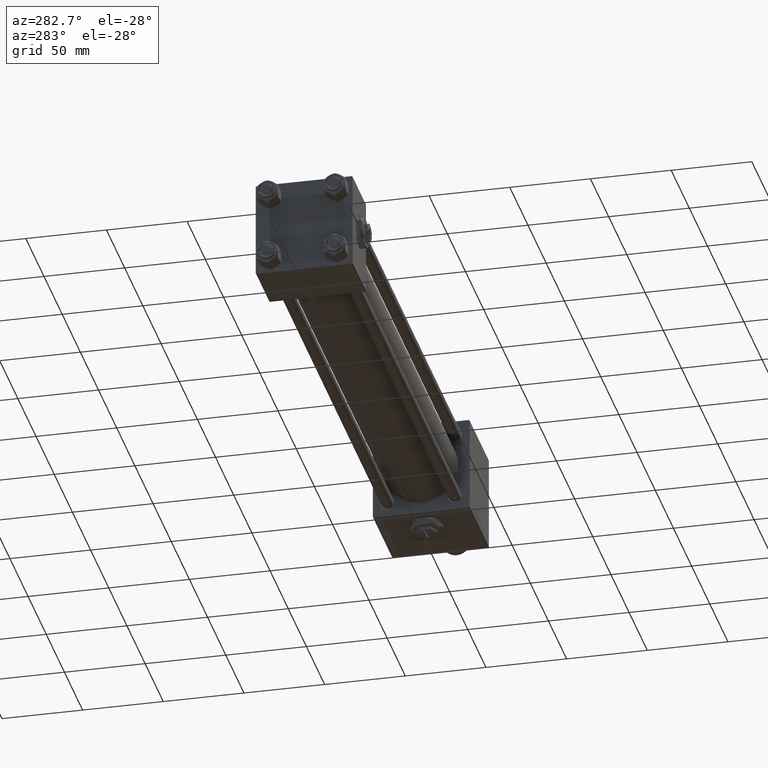
[diagram: clean part render]
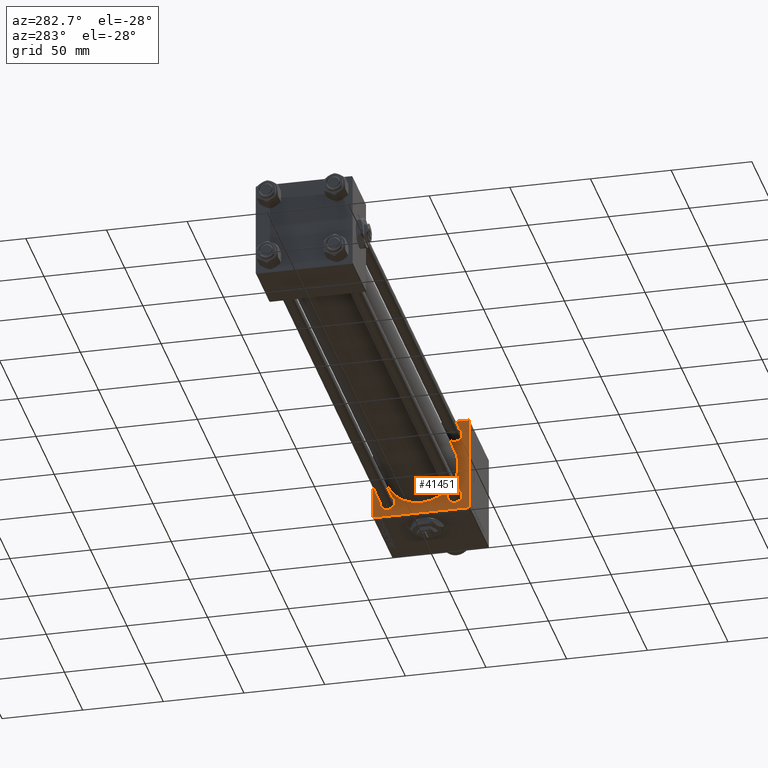
[diagram: same view with one face highlighted and labeled with its STEP entity id]
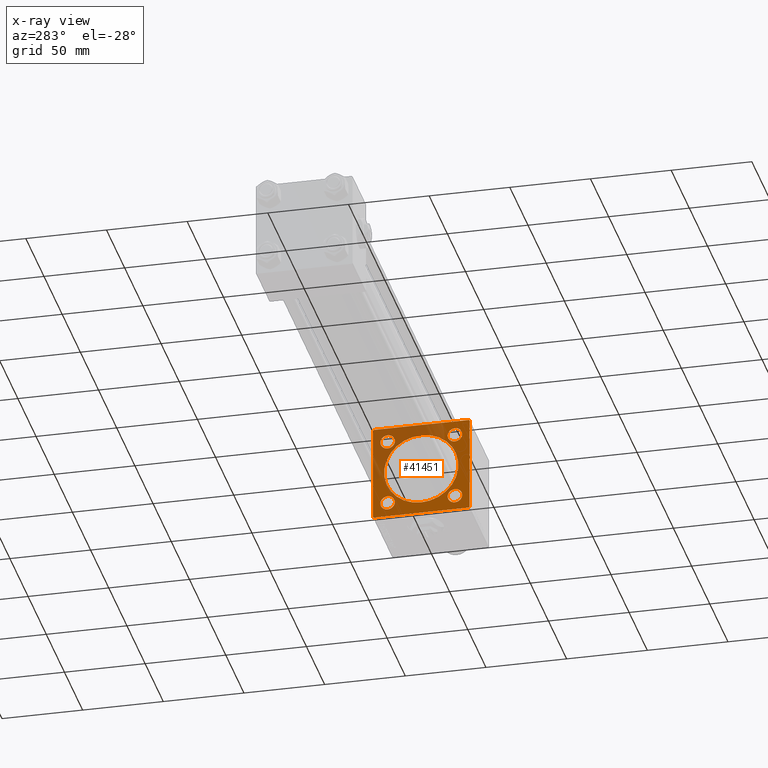
[diagram: x-ray of the same camera — body ghosted, the highlighted face saturated]
A machine part, auxiliary view. The second image highlights one B-rep face of the part: STEP entity #41451.
The next image is the same camera in x-ray: the body ghosted, the highlighted face saturated — about 32% of this face is hidden behind the body in this view.
In plain terms, the highlighted planar face has unit normal (-1, 0, 0).
Its self-contained STEP definition (entity closure, byte-faithful):
#282 = VECTOR ( 'NONE', #39278, 1000.000000000000114 ) ;
#416 = ORIENTED_EDGE ( 'NONE', *, *, #20924, .T. ) ;
#751 = DIRECTION ( 'NONE',  ( 0.000000000000000000, 0.000000000000000000, 1.000000000000000000 ) ) ;
#754 = CIRCLE ( 'NONE', #21160, 23.00000000000000000 ) ;
#1250 = CARTESIAN_POINT ( 'NONE',  ( 321.9999999999999432, 29.74999999999999645, -29.74999999999999645 ) ) ;
#1530 = EDGE_LOOP ( 'NONE', ( #33238, #6962 ) ) ;
#1919 = AXIS2_PLACEMENT_3D ( 'NONE', #45710, #4226, #751 ) ;
#1927 = DIRECTION ( 'NONE',  ( 1.000000000000000000, -0.000000000000000000, 0.000000000000000000 ) ) ;
#2007 = FACE_BOUND ( 'NONE', #33436, .T. ) ;
#3463 = VECTOR ( 'NONE', #21448, 1000.000000000000000 ) ;
#4226 = DIRECTION ( 'NONE',  ( 1.000000000000000000, -0.000000000000000000, 0.000000000000000000 ) ) ;
#4861 = VERTEX_POINT ( 'NONE', #27854 ) ;
#5483 = DIRECTION ( 'NONE',  ( -1.000000000000000000, 0.000000000000000000, -0.000000000000000000 ) ) ;
#5507 = CARTESIAN_POINT ( 'NONE',  ( 321.9999999999999432, -29.74999999999999645, -29.74999999999999645 ) ) ;
#5532 = CARTESIAN_POINT ( 'NONE',  ( 321.9999999999999432, 2.146024240737016609E-16, -23.00000000000000000 ) ) ;
#5620 = CARTESIAN_POINT ( 'NONE',  ( 321.9999999999999432, -29.50000000000000000, -30.00000000000000000 ) ) ;
#5749 = LINE ( 'NONE', #1250, #44205 ) ;
#5757 = LINE ( 'NONE', #5507, #6286 ) ;
#6286 = VECTOR ( 'NONE', #29441, 1000.000000000000114 ) ;
#6652 = ORIENTED_EDGE ( 'NONE', *, *, #41450, .T. ) ;
#6803 = VERTEX_POINT ( 'NONE', #35413 ) ;
#6962 = ORIENTED_EDGE ( 'NONE', *, *, #31670, .T. ) ;
#7680 = CARTESIAN_POINT ( 'NONE',  ( 321.9999999999999432, -20.84999999999999076, 25.35000000000001208 ) ) ;
#7930 = CARTESIAN_POINT ( 'NONE',  ( 321.9999999999999432, -20.84999999999999076, 20.85000000000000497 ) ) ;
#8440 = CARTESIAN_POINT ( 'NONE',  ( 321.9999999999999432, -29.75000000000001776, 29.75000000000001776 ) ) ;
#8842 = AXIS2_PLACEMENT_3D ( 'NONE', #41923, #5483, #17965 ) ;
#9683 = ORIENTED_EDGE ( 'NONE', *, *, #27147, .F. ) ;
#9980 = FACE_BOUND ( 'NONE', #45225, .T. ) ;
#9984 = VERTEX_POINT ( 'NONE', #23938 ) ;
#10256 = CIRCLE ( 'NONE', #31500, 4.500000000000007105 ) ;
#11751 = VERTEX_POINT ( 'NONE', #24295 ) ;
#12270 = EDGE_CURVE ( 'NONE', #6803, #13462, #10256, .T. ) ;
#12342 = AXIS2_PLACEMENT_3D ( 'NONE', #14412, #1927, #51674 ) ;
#12573 = VERTEX_POINT ( 'NONE', #34471 ) ;
#13033 = VERTEX_POINT ( 'NONE', #37881 ) ;
#13461 = FACE_BOUND ( 'NONE', #1530, .T. ) ;
#13462 = VERTEX_POINT ( 'NONE', #7680 ) ;
#13476 = VERTEX_POINT ( 'NONE', #15395 ) ;
#13835 = CARTESIAN_POINT ( 'NONE',  ( 321.9999999999999432, 20.84999999999999787, -20.85000000000000142 ) ) ;
#14279 = EDGE_LOOP ( 'NONE', ( #52408, #38369 ) ) ;
#14412 = CARTESIAN_POINT ( 'NONE',  ( 321.9999999999999432, -20.84999999999999076, 20.85000000000000497 ) ) ;
#14501 = ORIENTED_EDGE ( 'NONE', *, *, #50810, .F. ) ;
#15395 = CARTESIAN_POINT ( 'NONE',  ( 321.9999999999999432, 29.50000000000000000, -29.99999999999999289 ) ) ;
#15587 = VERTEX_POINT ( 'NONE', #48384 ) ;
#15654 = DIRECTION ( 'NONE',  ( 0.000000000000000000, 0.000000000000000000, 1.000000000000000000 ) ) ;
#15697 = CARTESIAN_POINT ( 'NONE',  ( 321.9999999999999432, 20.84999999999999787, 25.35000000000000853 ) ) ;
#16401 = AXIS2_PLACEMENT_3D ( 'NONE', #13835, #30046, #46289 ) ;
#16786 = ORIENTED_EDGE ( 'NONE', *, *, #12270, .T. ) ;
#17188 = CIRCLE ( 'NONE', #16401, 4.500000000000007105 ) ;
#17287 = ORIENTED_EDGE ( 'NONE', *, *, #44881, .T. ) ;
#17470 = DIRECTION ( 'NONE',  ( -0.000000000000000000, -0.7071067811865474617, -0.7071067811865474617 ) ) ;
#17965 = DIRECTION ( 'NONE',  ( -0.000000000000000000, 0.000000000000000000, 1.000000000000000000 ) ) ;
#18516 = DIRECTION ( 'NONE',  ( 1.000000000000000000, 0.000000000000000000, 0.000000000000000000 ) ) ;
#18778 = EDGE_CURVE ( 'NONE', #42672, #52528, #46490, .T. ) ;
#18881 = DIRECTION ( 'NONE',  ( 0.000000000000000000, 0.000000000000000000, -1.000000000000000000 ) ) ;
#19038 = CARTESIAN_POINT ( 'NONE',  ( 321.9999999999999432, -2.602085213965210642E-15, 23.00000000000000000 ) ) ;
#19646 = DIRECTION ( 'NONE',  ( 1.000000000000000000, -0.000000000000000000, 0.000000000000000000 ) ) ;
#19797 = CARTESIAN_POINT ( 'NONE',  ( 321.9999999999999432, 30.00000000000000000, 30.00000000000000000 ) ) ;
#20054 = DIRECTION ( 'NONE',  ( 0.000000000000000000, -1.000000000000000000, -1.156482317317871478E-16 ) ) ;
#20924 = EDGE_CURVE ( 'NONE', #39486, #27354, #5757, .T. ) ;
#21160 = AXIS2_PLACEMENT_3D ( 'NONE', #50978, #18516, #35002 ) ;
#21448 = DIRECTION ( 'NONE',  ( 0.000000000000000000, -1.000000000000000000, -1.156482317317871478E-16 ) ) ;
#21541 = EDGE_LOOP ( 'NONE', ( #17287, #16786 ) ) ;
#22176 = AXIS2_PLACEMENT_3D ( 'NONE', #25777, #45746, #42008 ) ;
#22493 = DIRECTION ( 'NONE',  ( 1.000000000000000000, -0.000000000000000000, 0.000000000000000000 ) ) ;
#22542 = CARTESIAN_POINT ( 'NONE',  ( 321.9999999999999432, 30.00000000000000000, 29.50000000000000000 ) ) ;
#22799 = CARTESIAN_POINT ( 'NONE',  ( 321.9999999999999432, 29.74999999999999645, 29.74999999999999645 ) ) ;
#22810 = DIRECTION ( 'NONE',  ( 0.000000000000000000, 0.000000000000000000, 1.000000000000000000 ) ) ;
#22966 = VECTOR ( 'NONE', #48900, 1000.000000000000114 ) ;
#23938 = CARTESIAN_POINT ( 'NONE',  ( 321.9999999999999432, 30.00000000000000000, -29.49999999999997868 ) ) ;
#24295 = CARTESIAN_POINT ( 'NONE',  ( 321.9999999999999432, 20.84999999999999787, 16.34999999999999432 ) ) ;
#24296 = VERTEX_POINT ( 'NONE', #40170 ) ;
#24305 = VERTEX_POINT ( 'NONE', #15697 ) ;
#24624 = LINE ( 'NONE', #33385, #50879 ) ;
#25735 = ORIENTED_EDGE ( 'NONE', *, *, #30307, .T. ) ;
#25777 = CARTESIAN_POINT ( 'NONE',  ( 321.9999999999999432, -2.602085213965210642E-15, 0.000000000000000000 ) ) ;
#26455 = FACE_BOUND ( 'NONE', #14279, .T. ) ;
#26809 = ORIENTED_EDGE ( 'NONE', *, *, #50455, .T. ) ;
#26938 = EDGE_CURVE ( 'NONE', #50008, #52612, #754, .T. ) ;
#27147 = EDGE_CURVE ( 'NONE', #15587, #27354, #24624, .T. ) ;
#27322 = AXIS2_PLACEMENT_3D ( 'NONE', #46472, #33958, #50470 ) ;
#27354 = VERTEX_POINT ( 'NONE', #39188 ) ;
#27485 = CIRCLE ( 'NONE', #37653, 4.500000000000007105 ) ;
#27544 = ORIENTED_EDGE ( 'NONE', *, *, #52438, .T. ) ;
#27655 = LINE ( 'NONE', #51347, #43628 ) ;
#27854 = CARTESIAN_POINT ( 'NONE',  ( 321.9999999999999432, 20.84999999999999787, -16.34999999999999432 ) ) ;
#28156 = CIRCLE ( 'NONE', #44312, 4.500000000000007105 ) ;
#28388 = LINE ( 'NONE', #8440, #22966 ) ;
#28593 = DIRECTION ( 'NONE',  ( 0.000000000000000000, 0.000000000000000000, -1.000000000000000000 ) ) ;
#29441 = DIRECTION ( 'NONE',  ( 0.000000000000000000, -0.7071067811865474617, 0.7071067811865474617 ) ) ;
#29921 = CARTESIAN_POINT ( 'NONE',  ( 321.9999999999999432, 30.00000000000000000, -29.99999999999999289 ) ) ;
#30044 = CIRCLE ( 'NONE', #36869, 4.500000000000007105 ) ;
#30046 = DIRECTION ( 'NONE',  ( 1.000000000000000000, -0.000000000000000000, 0.000000000000000000 ) ) ;
#30307 = EDGE_CURVE ( 'NONE', #15587, #24296, #28388, .T. ) ;
#30479 = EDGE_CURVE ( 'NONE', #9984, #13476, #5749, .T. ) ;
#30773 = DIRECTION ( 'NONE',  ( 1.000000000000000000, -0.000000000000000000, 0.000000000000000000 ) ) ;
#31500 = AXIS2_PLACEMENT_3D ( 'NONE', #7930, #19646, #15654 ) ;
#31670 = EDGE_CURVE ( 'NONE', #52612, #50008, #45128, .T. ) ;
#32982 = VERTEX_POINT ( 'NONE', #47529 ) ;
#33238 = ORIENTED_EDGE ( 'NONE', *, *, #26938, .T. ) ;
#33385 = CARTESIAN_POINT ( 'NONE',  ( 321.9999999999999432, -30.00000000000000000, 29.99999999999999289 ) ) ;
#33436 = EDGE_LOOP ( 'NONE', ( #6652, #26809 ) ) ;
#33958 = DIRECTION ( 'NONE',  ( 1.000000000000000000, -0.000000000000000000, 0.000000000000000000 ) ) ;
#34112 = VECTOR ( 'NONE', #20054, 1000.000000000000000 ) ;
#34290 = EDGE_CURVE ( 'NONE', #13476, #39486, #41911, .T. ) ;
#34471 = CARTESIAN_POINT ( 'NONE',  ( 321.9999999999999432, 20.84999999999999787, -25.35000000000000853 ) ) ;
#35002 = DIRECTION ( 'NONE',  ( 0.000000000000000000, 0.000000000000000000, -1.000000000000000000 ) ) ;
#35044 = ORIENTED_EDGE ( 'NONE', *, *, #40261, .T. ) ;
#35258 = CIRCLE ( 'NONE', #12342, 4.500000000000007105 ) ;
#35413 = CARTESIAN_POINT ( 'NONE',  ( 321.9999999999999432, -20.84999999999999076, 16.34999999999999787 ) ) ;
#35525 = EDGE_LOOP ( 'NONE', ( #46198, #416, #9683, #25735, #14501, #36275, #35044, #38187 ) ) ;
#35921 = CIRCLE ( 'NONE', #1919, 4.500000000000007105 ) ;
#36275 = ORIENTED_EDGE ( 'NONE', *, *, #18778, .T. ) ;
#36648 = ORIENTED_EDGE ( 'NONE', *, *, #40432, .T. ) ;
#36869 = AXIS2_PLACEMENT_3D ( 'NONE', #50440, #22493, #49919 ) ;
#36937 = EDGE_CURVE ( 'NONE', #12573, #4861, #28156, .T. ) ;
#37653 = AXIS2_PLACEMENT_3D ( 'NONE', #44555, #30773, #22810 ) ;
#37881 = CARTESIAN_POINT ( 'NONE',  ( 321.9999999999999432, -20.84999999999999076, -25.35000000000001208 ) ) ;
#38187 = ORIENTED_EDGE ( 'NONE', *, *, #30479, .T. ) ;
#38369 = ORIENTED_EDGE ( 'NONE', *, *, #36937, .T. ) ;
#39188 = CARTESIAN_POINT ( 'NONE',  ( 321.9999999999999432, -30.00000000000000000, -29.49999999999998579 ) ) ;
#39278 = DIRECTION ( 'NONE',  ( 0.000000000000000000, 0.7071067811865474617, -0.7071067811865474617 ) ) ;
#39486 = VERTEX_POINT ( 'NONE', #5620 ) ;
#40170 = CARTESIAN_POINT ( 'NONE',  ( 321.9999999999999432, -29.50000000000005329, 29.99999999999999289 ) ) ;
#40261 = EDGE_CURVE ( 'NONE', #52528, #9984, #27655, .T. ) ;
#40432 = EDGE_CURVE ( 'NONE', #32982, #13033, #27485, .T. ) ;
#40870 = DIRECTION ( 'NONE',  ( 0.000000000000000000, 0.000000000000000000, 1.000000000000000000 ) ) ;
#41450 = EDGE_CURVE ( 'NONE', #24305, #11751, #30044, .T. ) ;
#41451 = ADVANCED_FACE ( 'NONE', ( #46183, #2007, #26455, #9980, #13461, #50690 ), #46700, .T. ) ;
#41911 = LINE ( 'NONE', #29921, #3463 ) ;
#41923 = CARTESIAN_POINT ( 'NONE',  ( 321.9999999999999432, 0.000000000000000000, 0.000000000000000000 ) ) ;
#42008 = DIRECTION ( 'NONE',  ( 0.000000000000000000, 0.000000000000000000, -1.000000000000000000 ) ) ;
#42672 = VERTEX_POINT ( 'NONE', #45510 ) ;
#43628 = VECTOR ( 'NONE', #18881, 1000.000000000000000 ) ;
#44205 = VECTOR ( 'NONE', #17470, 1000.000000000000114 ) ;
#44312 = AXIS2_PLACEMENT_3D ( 'NONE', #48613, #52082, #40870 ) ;
#44555 = CARTESIAN_POINT ( 'NONE',  ( 321.9999999999999432, -20.84999999999999076, -20.85000000000000497 ) ) ;
#44881 = EDGE_CURVE ( 'NONE', #13462, #6803, #35258, .T. ) ;
#45128 = CIRCLE ( 'NONE', #22176, 23.00000000000000000 ) ;
#45225 = EDGE_LOOP ( 'NONE', ( #36648, #27544 ) ) ;
#45510 = CARTESIAN_POINT ( 'NONE',  ( 321.9999999999999432, 29.50000000000000000, 30.00000000000000000 ) ) ;
#45710 = CARTESIAN_POINT ( 'NONE',  ( 321.9999999999999432, -20.84999999999999076, -20.85000000000000497 ) ) ;
#45746 = DIRECTION ( 'NONE',  ( 1.000000000000000000, 0.000000000000000000, 0.000000000000000000 ) ) ;
#46183 = FACE_BOUND ( 'NONE', #21541, .T. ) ;
#46198 = ORIENTED_EDGE ( 'NONE', *, *, #34290, .T. ) ;
#46289 = DIRECTION ( 'NONE',  ( 0.000000000000000000, 0.000000000000000000, 1.000000000000000000 ) ) ;
#46472 = CARTESIAN_POINT ( 'NONE',  ( 321.9999999999999432, 20.84999999999999787, 20.85000000000000142 ) ) ;
#46490 = LINE ( 'NONE', #22799, #282 ) ;
#46700 = PLANE ( 'NONE',  #8842 ) ;
#47529 = CARTESIAN_POINT ( 'NONE',  ( 321.9999999999999432, -20.84999999999999076, -16.34999999999999787 ) ) ;
#48384 = CARTESIAN_POINT ( 'NONE',  ( 321.9999999999999432, -30.00000000000000000, 29.50000000000004619 ) ) ;
#48613 = CARTESIAN_POINT ( 'NONE',  ( 321.9999999999999432, 20.84999999999999787, -20.85000000000000142 ) ) ;
#48900 = DIRECTION ( 'NONE',  ( -0.000000000000000000, 0.7071067811865474617, 0.7071067811865474617 ) ) ;
#49450 = CIRCLE ( 'NONE', #27322, 4.500000000000007105 ) ;
#49919 = DIRECTION ( 'NONE',  ( 0.000000000000000000, 0.000000000000000000, 1.000000000000000000 ) ) ;
#50008 = VERTEX_POINT ( 'NONE', #19038 ) ;
#50440 = CARTESIAN_POINT ( 'NONE',  ( 321.9999999999999432, 20.84999999999999787, 20.85000000000000142 ) ) ;
#50455 = EDGE_CURVE ( 'NONE', #11751, #24305, #49450, .T. ) ;
#50470 = DIRECTION ( 'NONE',  ( 0.000000000000000000, 0.000000000000000000, 1.000000000000000000 ) ) ;
#50690 = FACE_OUTER_BOUND ( 'NONE', #35525, .T. ) ;
#50810 = EDGE_CURVE ( 'NONE', #42672, #24296, #51717, .T. ) ;
#50879 = VECTOR ( 'NONE', #28593, 1000.000000000000000 ) ;
#50978 = CARTESIAN_POINT ( 'NONE',  ( 321.9999999999999432, -2.602085213965210642E-15, 0.000000000000000000 ) ) ;
#51347 = CARTESIAN_POINT ( 'NONE',  ( 321.9999999999999432, 30.00000000000000000, 30.00000000000000000 ) ) ;
#51674 = DIRECTION ( 'NONE',  ( 0.000000000000000000, 0.000000000000000000, 1.000000000000000000 ) ) ;
#51717 = LINE ( 'NONE', #19797, #34112 ) ;
#52082 = DIRECTION ( 'NONE',  ( 1.000000000000000000, -0.000000000000000000, 0.000000000000000000 ) ) ;
#52208 = EDGE_CURVE ( 'NONE', #4861, #12573, #17188, .T. ) ;
#52408 = ORIENTED_EDGE ( 'NONE', *, *, #52208, .T. ) ;
#52438 = EDGE_CURVE ( 'NONE', #13033, #32982, #35921, .T. ) ;
#52528 = VERTEX_POINT ( 'NONE', #22542 ) ;
#52612 = VERTEX_POINT ( 'NONE', #5532 ) ;